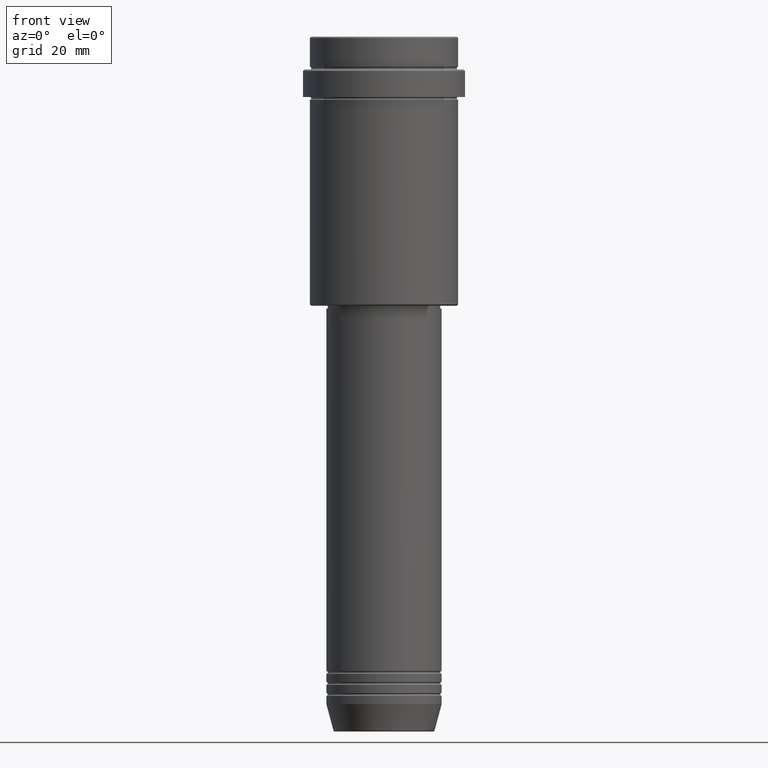
[diagram: clean part render]
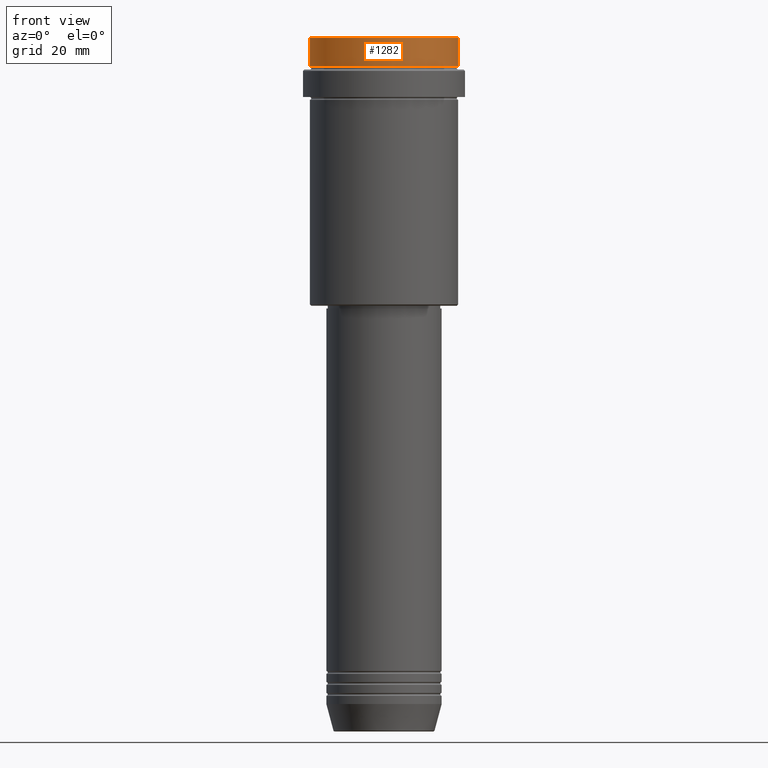
[diagram: same view with one face highlighted and labeled with its STEP entity id]
A machine part, front view. The second image highlights one B-rep face of the part: STEP entity #1282.
In plain terms, the highlighted cylindrical surface (partial cylindrical patch) has radius 27 mm, axis along (-0, -0, 1).
Its self-contained STEP definition (entity closure, byte-faithful):
#10 = VERTEX_POINT ( 'NONE', #477 ) ;
#28 = VERTEX_POINT ( 'NONE', #483 ) ;
#191 = DIRECTION ( 'NONE',  ( -0.000000000000000000, -0.000000000000000000, 1.000000000000000000 ) ) ;
#202 = CARTESIAN_POINT ( 'NONE',  ( 0.000000000000000000, 0.000000000000000000, -0.5000000000000350830 ) ) ;
#221 = EDGE_LOOP ( 'NONE', ( #889, #687, #903, #331 ) ) ;
#223 = EDGE_CURVE ( 'NONE', #28, #560, #1200, .T. ) ;
#249 = CARTESIAN_POINT ( 'NONE',  ( -27.00000000000000355, 3.306546357697854128E-15, 0.000000000000000000 ) ) ;
#284 = AXIS2_PLACEMENT_3D ( 'NONE', #581, #1034, #1018 ) ;
#324 = DIRECTION ( 'NONE',  ( 1.000000000000000000, 0.000000000000000000, 0.000000000000000000 ) ) ;
#331 = ORIENTED_EDGE ( 'NONE', *, *, #223, .T. ) ;
#409 = DIRECTION ( 'NONE',  ( -0.000000000000000000, -0.000000000000000000, 1.000000000000000000 ) ) ;
#477 = CARTESIAN_POINT ( 'NONE',  ( 27.00000000000000355, 0.000000000000000000, -11.00000000000000178 ) ) ;
#483 = CARTESIAN_POINT ( 'NONE',  ( 27.00000000000000355, 0.000000000000000000, -0.5000000000000350830 ) ) ;
#500 = CARTESIAN_POINT ( 'NONE',  ( 27.00000000000000355, 0.000000000000000000, 0.000000000000000000 ) ) ;
#560 = VERTEX_POINT ( 'NONE', #956 ) ;
#566 = CIRCLE ( 'NONE', #1364, 27.00000000000000355 ) ;
#581 = CARTESIAN_POINT ( 'NONE',  ( 0.000000000000000000, 0.000000000000000000, 0.000000000000000000 ) ) ;
#687 = ORIENTED_EDGE ( 'NONE', *, *, #714, .T. ) ;
#714 = EDGE_CURVE ( 'NONE', #1376, #10, #566, .T. ) ;
#743 = CARTESIAN_POINT ( 'NONE',  ( 0.000000000000000000, 0.000000000000000000, -11.00000000000000178 ) ) ;
#815 = AXIS2_PLACEMENT_3D ( 'NONE', #202, #1067, #324 ) ;
#822 = CYLINDRICAL_SURFACE ( 'NONE', #284, 27.00000000000000355 ) ;
#846 = CARTESIAN_POINT ( 'NONE',  ( -27.00000000000000355, 3.306546357697854128E-15, -11.00000000000000178 ) ) ;
#856 = DIRECTION ( 'NONE',  ( 1.000000000000000000, 0.000000000000000000, 0.000000000000000000 ) ) ;
#889 = ORIENTED_EDGE ( 'NONE', *, *, #1334, .F. ) ;
#901 = VECTOR ( 'NONE', #191, 1000.000000000000000 ) ;
#903 = ORIENTED_EDGE ( 'NONE', *, *, #1038, .T. ) ;
#913 = DIRECTION ( 'NONE',  ( -0.000000000000000000, -0.000000000000000000, 1.000000000000000000 ) ) ;
#956 = CARTESIAN_POINT ( 'NONE',  ( -27.00000000000000355, 3.306546357697854128E-15, -0.5000000000000350830 ) ) ;
#1018 = DIRECTION ( 'NONE',  ( 1.000000000000000000, 0.000000000000000000, 0.000000000000000000 ) ) ;
#1034 = DIRECTION ( 'NONE',  ( -0.000000000000000000, -0.000000000000000000, 1.000000000000000000 ) ) ;
#1038 = EDGE_CURVE ( 'NONE', #10, #28, #1148, .T. ) ;
#1067 = DIRECTION ( 'NONE',  ( 0.000000000000000000, 0.000000000000000000, -1.000000000000000000 ) ) ;
#1137 = FACE_OUTER_BOUND ( 'NONE', #221, .T. ) ;
#1148 = LINE ( 'NONE', #500, #901 ) ;
#1200 = CIRCLE ( 'NONE', #815, 27.00000000000000355 ) ;
#1238 = LINE ( 'NONE', #249, #1407 ) ;
#1282 = ADVANCED_FACE ( 'NONE', ( #1137 ), #822, .T. ) ;
#1334 = EDGE_CURVE ( 'NONE', #1376, #560, #1238, .T. ) ;
#1364 = AXIS2_PLACEMENT_3D ( 'NONE', #743, #409, #856 ) ;
#1376 = VERTEX_POINT ( 'NONE', #846 ) ;
#1407 = VECTOR ( 'NONE', #913, 1000.000000000000000 ) ;